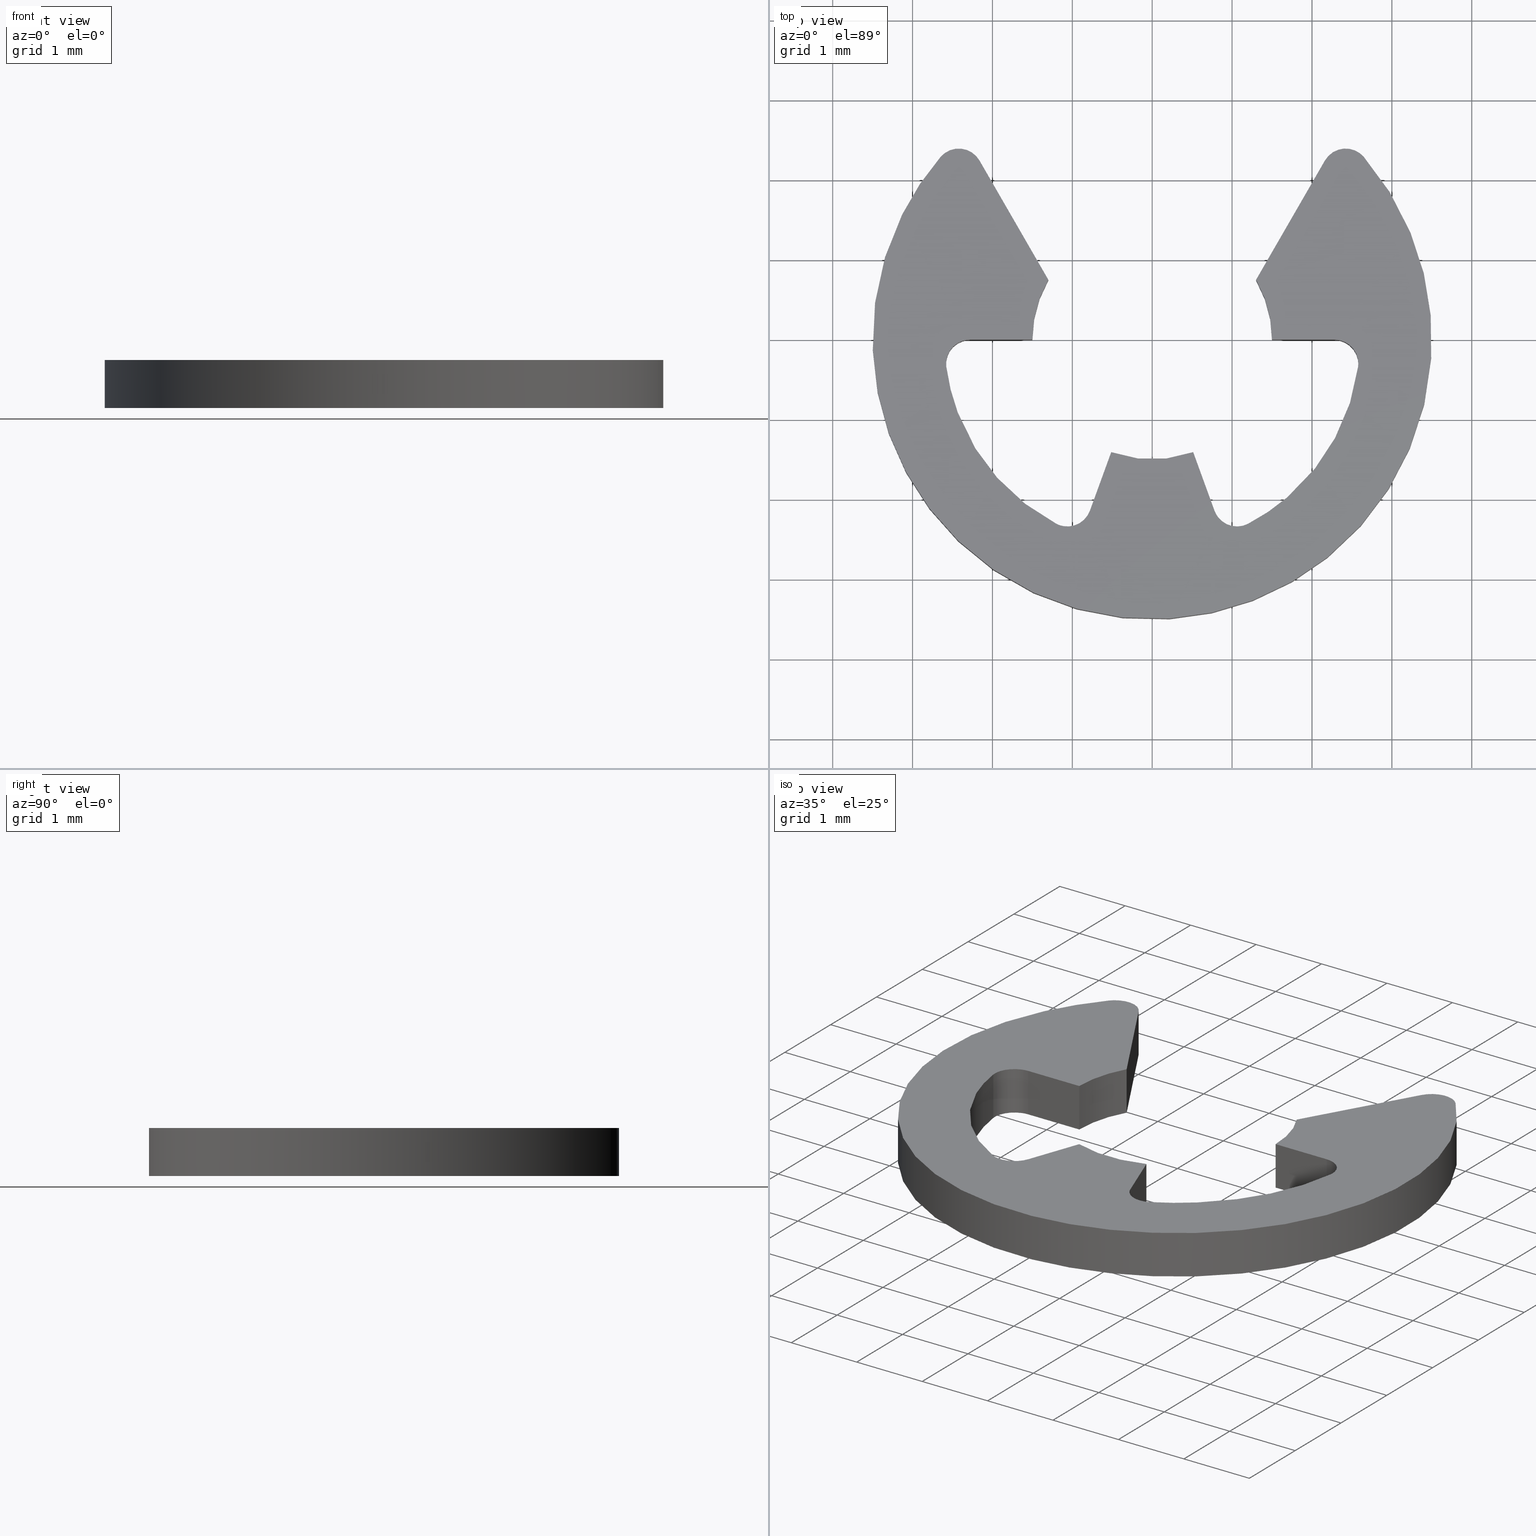
[diagram: canonical four-view strip — front | top / right | iso, engineering-drawing reading convention]
A machine part, canonical four-view strip (front | top / right | iso — engineering-drawing reading convention). The complete STEP part file that produces these views, byte-faithful:
ISO-10303-21;
HEADER;
/****************************************************************
 * Generated by software with PDE/Lib inside                    *
 * PDElib Version 4.4.1-0003, patched  Thursday August 19 11:58 *
 * International Technegroup Inc. (www.iti-oh.com)              *
 ****************************************************************/
FILE_DESCRIPTION((''),'2;1');
FILE_NAME('','2005-04-20T08:52:29',(''),(''),'','CADfix','');
FILE_SCHEMA(('AUTOMOTIVE_DESIGN'));
ENDSEC;
DATA;
#5=APPLICATION_CONTEXT('automotive design');
#6=APPLICATION_PROTOCOL_DEFINITION('Draft International Standard','automotive_design',1998,#5);
#7=PRODUCT_CONTEXT('None',#5,'mechanical');
#8=PRODUCT('retainer','','None',(#7));
#9=PRODUCT_RELATED_PRODUCT_CATEGORY('part','description',(#8));
#10=PRODUCT_DEFINITION_FORMATION('None','None',#8);
#11=PRODUCT_DEFINITION_CONTEXT('part definition',#5,'design');
#12=PRODUCT_DEFINITION('None','None',#10,#11);
#18=(NAMED_UNIT(*)PLANE_ANGLE_UNIT()SI_UNIT($,.RADIAN.));
#19=DIMENSIONAL_EXPONENTS(0.0,0.0,0.0,0.0,0.0,0.0,0.0);
#20=PLANE_ANGLE_MEASURE_WITH_UNIT(PLANE_ANGLE_MEASURE(0.017453292500000),#18);
#24=(CONVERSION_BASED_UNIT('DEGREE',#20)NAMED_UNIT(#19)PLANE_ANGLE_UNIT());
#28=(NAMED_UNIT(*)SI_UNIT($,.STERADIAN.)SOLID_ANGLE_UNIT());
#32=(LENGTH_UNIT()NAMED_UNIT(*)SI_UNIT(.MILLI.,.METRE.));
#34=UNCERTAINTY_MEASURE_WITH_UNIT(LENGTH_MEASURE(0.001000000000000),#32,'DISTANCE_ACCURACY_VALUE','');
#36=(GEOMETRIC_REPRESENTATION_CONTEXT(3)GLOBAL_UNCERTAINTY_ASSIGNED_CONTEXT((#34))GLOBAL_UNIT_ASSIGNED_CONTEXT((#24,#28,#32))REPRESENTATION_CONTEXT('None','None'));
#37=AXIS2_PLACEMENT_3D('',#38,#39,#40);
#38=CARTESIAN_POINT('',(0.0,0.0,0.0));
#39=DIRECTION('',(0.0,0.0,1.0));
#40=DIRECTION('',(1.0,0.0,0.0));
#41=ADVANCED_BREP_SHAPE_REPRESENTATION('',(#37,#941),#36);
#42=PRODUCT_DEFINITION_SHAPE('','',#12);
#43=SHAPE_DEFINITION_REPRESENTATION(#42,#41);
#44=CARTESIAN_POINT('',(-3.845083127346428,-3.794273715898620,0.0));
#45=CARTESIAN_POINT('',(3.845083202592860,-3.794273715898620,0.0));
#46=CARTESIAN_POINT('',(-3.845083127346428,2.685639786198697,0.0));
#47=CARTESIAN_POINT('',(3.845083202592860,2.685639786198697,0.0));
#48=B_SPLINE_SURFACE_WITH_KNOTS('',1,1,((#44,#46),(#45,#47)),.UNSPECIFIED.,.F.,.F.,.U.,(2,2),(2,2),(0.0,7.690166329939289),(0.0,6.479913502097317),.UNSPECIFIED.);
#49=CARTESIAN_POINT('',(-1.500000000000000,0.0,0.0));
#50=VERTEX_POINT('',#49);
#51=CARTESIAN_POINT('',(-1.300001000000000,0.748328999999899,0.0));
#52=VERTEX_POINT('',#51);
#53=CARTESIAN_POINT('',(-1.500000000000000,0.0,0.0));
#54=CARTESIAN_POINT('',(-1.500000000000000,0.400890445406895,0.0));
#55=CARTESIAN_POINT('',(-1.300001000000000,0.748328999999899,0.0));
#63=(BOUNDED_CURVE()B_SPLINE_CURVE(2,(#53,#54,#55),.UNSPECIFIED.,.F.,.U.)CURVE()GEOMETRIC_REPRESENTATION_ITEM()QUASI_UNIFORM_CURVE()RATIONAL_B_SPLINE_CURVE((1.0,0.966092010804248,1.0))REPRESENTATION_ITEM(''));
#64=EDGE_CURVE('',#50,#52,#63,.T.);
#65=ORIENTED_EDGE('',*,*,#64,.F.);
#66=CARTESIAN_POINT('',(-2.280351994764015,-0.000003000000103,0.0));
#67=VERTEX_POINT('',#66);
#68=CARTESIAN_POINT('',(-2.280351994764015,-0.000003000000103,0.0));
#69=CARTESIAN_POINT('',(-1.500000000000000,0.0,0.0));
#70=QUASI_UNIFORM_CURVE('',1,(#68,#69),.UNSPECIFIED.,.F.,.U.);
#71=EDGE_CURVE('',#67,#50,#70,.T.);
#72=ORIENTED_EDGE('',*,*,#71,.F.);
#73=CARTESIAN_POINT('',(-2.577788062356600,-0.339129334578741,0.0));
#74=VERTEX_POINT('',#73);
#75=CARTESIAN_POINT('',(-2.577788062356600,-0.339129334578741,0.0));
#76=CARTESIAN_POINT('',(-2.595515124665340,-0.204371596682613,0.0));
#77=CARTESIAN_POINT('',(-2.505892765611844,-0.102187277315756,0.0));
#78=CARTESIAN_POINT('',(-2.416270406558349,-0.000002957948899,0.0));
#79=CARTESIAN_POINT('',(-2.280351994764015,-0.000003000000103,0.0));
#87=(BOUNDED_CURVE()B_SPLINE_CURVE(2,(#75,#76,#77,#78,#79),.UNSPECIFIED.,.F.,.U.)B_SPLINE_CURVE_WITH_KNOTS((3,2,3),(0.0,0.500000000000000,1.0),.UNSPECIFIED.)CURVE()GEOMETRIC_REPRESENTATION_ITEM()RATIONAL_B_SPLINE_CURVE((1.0,0.910874688502973,1.0,0.910874688502973,1.0))REPRESENTATION_ITEM(''));
#88=EDGE_CURVE('',#74,#67,#87,.T.);
#89=ORIENTED_EDGE('',*,*,#88,.F.);
#90=CARTESIAN_POINT('',(-1.200332558039268,-2.306345755683250,0.0));
#91=VERTEX_POINT('',#90);
#92=CARTESIAN_POINT('',(-1.200332558039268,-2.306345755683250,0.0));
#93=CARTESIAN_POINT('',(-2.401209605165513,-1.681348804126765,0.0));
#94=CARTESIAN_POINT('',(-2.577788062356600,-0.339129334578741,0.0));
#102=(BOUNDED_CURVE()B_SPLINE_CURVE(2,(#92,#93,#94),.UNSPECIFIED.,.F.,.U.)CURVE()GEOMETRIC_REPRESENTATION_ITEM()QUASI_UNIFORM_CURVE()RATIONAL_B_SPLINE_CURVE((1.0,0.886967780551010,1.0))REPRESENTATION_ITEM(''));
#103=EDGE_CURVE('',#91,#74,#102,.T.);
#104=ORIENTED_EDGE('',*,*,#103,.F.);
#105=CARTESIAN_POINT('',(-0.779926000000000,-2.142830000000105,0.0));
#106=VERTEX_POINT('',#105);
#107=CARTESIAN_POINT('',(-0.779926000000000,-2.142830000000105,0.0));
#108=CARTESIAN_POINT('',(-0.826411067296202,-2.270555561546921,0.0));
#109=CARTESIAN_POINT('',(-0.953087364756969,-2.319825893111315,0.0));
#110=CARTESIAN_POINT('',(-1.079763662217735,-2.369096224675708,0.0));
#111=CARTESIAN_POINT('',(-1.200332558039268,-2.306345755683250,0.0));
#119=(BOUNDED_CURVE()B_SPLINE_CURVE(2,(#107,#108,#109,#110,#111),.UNSPECIFIED.,.F.,.U.)B_SPLINE_CURVE_WITH_KNOTS((3,2,3),(0.0,0.500000000000000,1.0),.UNSPECIFIED.)CURVE()GEOMETRIC_REPRESENTATION_ITEM()RATIONAL_B_SPLINE_CURVE((1.0,0.910871397277956,1.0,0.910871397277956,1.0))REPRESENTATION_ITEM(''));
#120=EDGE_CURVE('',#106,#91,#119,.T.);
#121=ORIENTED_EDGE('',*,*,#120,.F.);
#122=CARTESIAN_POINT('',(-0.513031518846331,-1.409538456612740,0.0));
#123=VERTEX_POINT('',#122);
#124=CARTESIAN_POINT('',(-0.513031518846331,-1.409538456612740,0.0));
#125=CARTESIAN_POINT('',(-0.779926000000000,-2.142830000000105,0.0));
#126=QUASI_UNIFORM_CURVE('',1,(#124,#125),.UNSPECIFIED.,.F.,.U.);
#127=EDGE_CURVE('',#123,#106,#126,.T.);
#128=ORIENTED_EDGE('',*,*,#127,.F.);
#129=CARTESIAN_POINT('',(0.513029000000000,-1.409546000000000,0.0));
#130=VERTEX_POINT('',#129);
#131=CARTESIAN_POINT('',(0.513029000000000,-1.409546000000000,0.0));
#132=CARTESIAN_POINT('',(-0.000001567330711,-1.596269163825916,0.0));
#133=CARTESIAN_POINT('',(-0.513031518846331,-1.409538456612740,0.0));
#141=(BOUNDED_CURVE()B_SPLINE_CURVE(2,(#131,#132,#133),.UNSPECIFIED.,.F.,.U.)CURVE()GEOMETRIC_REPRESENTATION_ITEM()QUASI_UNIFORM_CURVE()RATIONAL_B_SPLINE_CURVE((1.0,0.939692868390395,1.0))REPRESENTATION_ITEM(''));
#142=EDGE_CURVE('',#130,#123,#141,.T.);
#143=ORIENTED_EDGE('',*,*,#142,.F.);
#144=CARTESIAN_POINT('',(0.779924138981017,-2.142830381845260,0.0));
#145=VERTEX_POINT('',#144);
#146=CARTESIAN_POINT('',(0.779924138981017,-2.142830381845260,0.0));
#147=CARTESIAN_POINT('',(0.513029000000000,-1.409546000000000,0.0));
#148=QUASI_UNIFORM_CURVE('',1,(#146,#147),.UNSPECIFIED.,.F.,.U.);
#149=EDGE_CURVE('',#145,#130,#148,.T.);
#150=ORIENTED_EDGE('',*,*,#149,.F.);
#151=CARTESIAN_POINT('',(1.200331538917840,-2.306340000233950,0.0));
#152=VERTEX_POINT('',#151);
#153=CARTESIAN_POINT('',(1.200331538917839,-2.306340000233949,0.0));
#154=CARTESIAN_POINT('',(1.079763488574856,-2.369089479234371,0.0));
#155=CARTESIAN_POINT('',(0.953087554820629,-2.319821237071419,0.0));
#156=CARTESIAN_POINT('',(0.826411621066402,-2.270552994908467,0.0));
#157=CARTESIAN_POINT('',(0.779924138981018,-2.142830381845259,0.0));
#165=(BOUNDED_CURVE()B_SPLINE_CURVE(2,(#153,#154,#155,#156,#157),.UNSPECIFIED.,.F.,.U.)B_SPLINE_CURVE_WITH_KNOTS((3,2,3),(0.0,0.500000000000000,1.0),.UNSPECIFIED.)CURVE()GEOMETRIC_REPRESENTATION_ITEM()RATIONAL_B_SPLINE_CURVE((1.0,0.910873616951622,1.0,0.910873616951622,1.0))REPRESENTATION_ITEM(''));
#166=EDGE_CURVE('',#152,#145,#165,.T.);
#167=ORIENTED_EDGE('',*,*,#166,.F.);
#168=CARTESIAN_POINT('',(2.577787015822346,-0.339133826961695,0.0));
#169=VERTEX_POINT('',#168);
#170=CARTESIAN_POINT('',(2.577787015822346,-0.339133826961695,0.0));
#171=CARTESIAN_POINT('',(2.401205875392415,-1.681346573331909,0.0));
#172=CARTESIAN_POINT('',(1.200331538917840,-2.306340000233948,0.0));
#180=(BOUNDED_CURVE()B_SPLINE_CURVE(2,(#170,#171,#172),.UNSPECIFIED.,.F.,.U.)CURVE()GEOMETRIC_REPRESENTATION_ITEM()QUASI_UNIFORM_CURVE()RATIONAL_B_SPLINE_CURVE((1.0,0.886968343947677,1.0))REPRESENTATION_ITEM(''));
#181=EDGE_CURVE('',#169,#152,#180,.T.);
#182=ORIENTED_EDGE('',*,*,#181,.F.);
#183=CARTESIAN_POINT('',(2.280350000000000,0.0,0.0));
#184=VERTEX_POINT('',#183);
#185=CARTESIAN_POINT('',(2.280350000000000,0.0,0.0));
#186=CARTESIAN_POINT('',(2.416270016453168,-0.000000596047930,0.0));
#187=CARTESIAN_POINT('',(2.505892953878499,-0.102187506673590,0.0));
#188=CARTESIAN_POINT('',(2.595515891303831,-0.204374417299251,0.0));
#189=CARTESIAN_POINT('',(2.577787015822346,-0.339133826961695,0.0));
#197=(BOUNDED_CURVE()B_SPLINE_CURVE(2,(#185,#186,#187,#188,#189),.UNSPECIFIED.,.F.,.U.)B_SPLINE_CURVE_WITH_KNOTS((3,2,3),(0.0,0.500000000000000,1.0),.UNSPECIFIED.)CURVE()GEOMETRIC_REPRESENTATION_ITEM()RATIONAL_B_SPLINE_CURVE((1.0,0.910873201316976,1.0,0.910873201316976,1.0))REPRESENTATION_ITEM(''));
#198=EDGE_CURVE('',#184,#169,#197,.T.);
#199=ORIENTED_EDGE('',*,*,#198,.F.);
#200=CARTESIAN_POINT('',(1.500000000000000,3.673819E-016,0.0));
#201=VERTEX_POINT('',#200);
#202=CARTESIAN_POINT('',(1.500000000000000,3.673819E-016,0.0));
#203=CARTESIAN_POINT('',(2.280350000000000,0.0,0.0));
#204=QUASI_UNIFORM_CURVE('',1,(#202,#203),.UNSPECIFIED.,.F.,.U.);
#205=EDGE_CURVE('',#201,#184,#204,.T.);
#206=ORIENTED_EDGE('',*,*,#205,.F.);
#207=CARTESIAN_POINT('',(1.299999000000000,0.748328999999899,0.0));
#208=VERTEX_POINT('',#207);
#209=CARTESIAN_POINT('',(1.299999000000000,0.748328999999899,0.0));
#210=CARTESIAN_POINT('',(1.499999088878164,0.400890455451811,0.0));
#211=CARTESIAN_POINT('',(1.500000000000000,3.673819E-016,0.0));
#219=(BOUNDED_CURVE()B_SPLINE_CURVE(2,(#209,#210,#211),.UNSPECIFIED.,.F.,.U.)CURVE()GEOMETRIC_REPRESENTATION_ITEM()QUASI_UNIFORM_CURVE()RATIONAL_B_SPLINE_CURVE((1.0,0.966091924929796,1.0))REPRESENTATION_ITEM(''));
#220=EDGE_CURVE('',#208,#201,#219,.T.);
#221=ORIENTED_EDGE('',*,*,#220,.F.);
#222=CARTESIAN_POINT('',(2.162086172043400,2.241506641774375,0.0));
#223=VERTEX_POINT('',#222);
#224=CARTESIAN_POINT('',(2.162086172043400,2.241506641774375,0.0));
#225=CARTESIAN_POINT('',(1.299999000000000,0.748328999999899,0.0));
#226=QUASI_UNIFORM_CURVE('',1,(#224,#225),.UNSPECIFIED.,.F.,.U.);
#227=EDGE_CURVE('',#223,#208,#226,.T.);
#228=ORIENTED_EDGE('',*,*,#227,.F.);
#229=CARTESIAN_POINT('',(2.648947918440440,2.287591511915985,0.0));
#230=VERTEX_POINT('',#229);
#231=CARTESIAN_POINT('',(2.162086172043400,2.241506641774375,0.0));
#232=CARTESIAN_POINT('',(2.239495828976419,2.375584001545189,0.0));
#233=CARTESIAN_POINT('',(2.393626465706862,2.390173544533791,0.0));
#234=CARTESIAN_POINT('',(2.547757102437305,2.404763087522395,0.0));
#235=CARTESIAN_POINT('',(2.648947918440440,2.287591511915985,0.0));
#243=(BOUNDED_CURVE()B_SPLINE_CURVE(2,(#231,#232,#233,#234,#235),.UNSPECIFIED.,.F.,.U.)B_SPLINE_CURVE_WITH_KNOTS((3,2,3),(0.0,0.500000000000000,1.0),.UNSPECIFIED.)CURVE()GEOMETRIC_REPRESENTATION_ITEM()RATIONAL_B_SPLINE_CURVE((1.0,0.888645087393422,1.0,0.888645087393422,1.0))REPRESENTATION_ITEM(''));
#244=EDGE_CURVE('',#223,#230,#243,.T.);
#245=ORIENTED_EDGE('',*,*,#244,.T.);
#246=CARTESIAN_POINT('',(-2.648951083941810,2.287587846375195,0.0));
#247=VERTEX_POINT('',#246);
#248=CARTESIAN_POINT('',(2.648947918440440,2.287591511915984,0.0));
#249=CARTESIAN_POINT('',(4.827730852482507,-0.235360023706016,0.0));
#250=CARTESIAN_POINT('',(2.413867098343857,-2.534412285231629,0.0));
#251=CARTESIAN_POINT('',(0.000003344205210,-4.833464546757240,0.0));
#252=CARTESIAN_POINT('',(-2.413863591294092,-2.534415625469665,0.0));
#253=CARTESIAN_POINT('',(-4.827730526793396,-0.235366704182089,0.0));
#254=CARTESIAN_POINT('',(-2.648951083941811,2.287587846375196,0.0));
#262=(BOUNDED_CURVE()B_SPLINE_CURVE(2,(#248,#249,#250,#251,#252,#253,#254),.UNSPECIFIED.,.F.,.U.)B_SPLINE_CURVE_WITH_KNOTS((3,2,2,3),(0.0,0.333333333333333,0.666666666666667,1.0),.UNSPECIFIED.)CURVE()GEOMETRIC_REPRESENTATION_ITEM()RATIONAL_B_SPLINE_CURVE((1.0,0.724118272957500,1.0,0.724118272957500,1.0,0.724118272957500,1.0))REPRESENTATION_ITEM(''));
#263=EDGE_CURVE('',#230,#247,#262,.T.);
#264=ORIENTED_EDGE('',*,*,#263,.T.);
#265=CARTESIAN_POINT('',(-2.162090000000000,2.241507999999895,0.0));
#266=VERTEX_POINT('',#265);
#267=CARTESIAN_POINT('',(-2.648951083941811,2.287587846375196,0.0));
#268=CARTESIAN_POINT('',(-2.547761402684595,2.404762151298508,0.0));
#269=CARTESIAN_POINT('',(-2.393630421255934,2.390174146258859,0.0));
#270=CARTESIAN_POINT('',(-2.239499439827274,2.375586141219209,0.0));
#271=CARTESIAN_POINT('',(-2.162090000000000,2.241507999999895,0.0));
#279=(BOUNDED_CURVE()B_SPLINE_CURVE(2,(#267,#268,#269,#270,#271),.UNSPECIFIED.,.F.,.U.)B_SPLINE_CURVE_WITH_KNOTS((3,2,3),(0.0,0.500000000000000,1.0),.UNSPECIFIED.)CURVE()GEOMETRIC_REPRESENTATION_ITEM()RATIONAL_B_SPLINE_CURVE((1.0,0.888643489135460,1.0,0.888643489135460,1.0))REPRESENTATION_ITEM(''));
#280=EDGE_CURVE('',#247,#266,#279,.T.);
#281=ORIENTED_EDGE('',*,*,#280,.T.);
#282=CARTESIAN_POINT('',(-1.300001000000000,0.748328999999899,0.0));
#283=CARTESIAN_POINT('',(-2.162090000000000,2.241507999999895,0.0));
#284=QUASI_UNIFORM_CURVE('',1,(#282,#283),.UNSPECIFIED.,.F.,.U.);
#285=EDGE_CURVE('',#52,#266,#284,.T.);
#286=ORIENTED_EDGE('',*,*,#285,.F.);
#287=EDGE_LOOP('',(#65,#72,#89,#104,#121,#128,#143,#150,#167,#182,#199,#206,#221,#228,#245,#264,#281,#286));
#288=FACE_OUTER_BOUND('',#287,.T.);
#289=ADVANCED_FACE('',(#288),#48,.F.);
#290=CARTESIAN_POINT('',(-3.845083127346428,-3.794273715898620,0.599990999999903));
#291=CARTESIAN_POINT('',(3.845083202592860,-3.794273715898620,0.599990999999903));
#292=CARTESIAN_POINT('',(-3.845083127346428,2.685639786198697,0.599990999999903));
#293=CARTESIAN_POINT('',(3.845083202592860,2.685639786198697,0.599990999999903));
#294=B_SPLINE_SURFACE_WITH_KNOTS('',1,1,((#290,#292),(#291,#293)),.UNSPECIFIED.,.F.,.F.,.U.,(2,2),(2,2),(0.0,7.690166329939289),(0.0,6.479913502097317),.UNSPECIFIED.);
#295=CARTESIAN_POINT('',(-1.500000000000000,0.0,0.599990999999855));
#296=VERTEX_POINT('',#295);
#297=CARTESIAN_POINT('',(-1.300001000000000,0.748328999999899,0.599990999999855));
#298=VERTEX_POINT('',#297);
#299=CARTESIAN_POINT('',(-1.500000000000000,0.0,0.599990999999855));
#300=CARTESIAN_POINT('',(-1.500000000000000,0.400890445406895,0.599990999999855));
#301=CARTESIAN_POINT('',(-1.300001000000000,0.748328999999899,0.599990999999855));
#309=(BOUNDED_CURVE()B_SPLINE_CURVE(2,(#299,#300,#301),.UNSPECIFIED.,.F.,.U.)CURVE()GEOMETRIC_REPRESENTATION_ITEM()QUASI_UNIFORM_CURVE()RATIONAL_B_SPLINE_CURVE((1.0,0.966092010804248,1.0))REPRESENTATION_ITEM(''));
#310=EDGE_CURVE('',#296,#298,#309,.T.);
#311=ORIENTED_EDGE('',*,*,#310,.T.);
#312=CARTESIAN_POINT('',(-2.162090000000000,2.241507999999895,0.599990999999855));
#313=VERTEX_POINT('',#312);
#314=CARTESIAN_POINT('',(-1.300001000000000,0.748328999999899,0.599990999999855));
#315=CARTESIAN_POINT('',(-2.162090000000000,2.241507999999895,0.599990999999855));
#316=QUASI_UNIFORM_CURVE('',1,(#314,#315),.UNSPECIFIED.,.F.,.U.);
#317=EDGE_CURVE('',#298,#313,#316,.T.);
#318=ORIENTED_EDGE('',*,*,#317,.T.);
#319=CARTESIAN_POINT('',(-2.648951083941810,2.287587846375195,0.599990999999855));
#320=VERTEX_POINT('',#319);
#321=CARTESIAN_POINT('',(-2.648951083941811,2.287587846375196,0.599990999999855));
#322=CARTESIAN_POINT('',(-2.547761402684595,2.404762151298508,0.599990999999855));
#323=CARTESIAN_POINT('',(-2.393630421255934,2.390174146258859,0.599990999999855));
#324=CARTESIAN_POINT('',(-2.239499439827274,2.375586141219209,0.599990999999855));
#325=CARTESIAN_POINT('',(-2.162090000000000,2.241507999999895,0.599990999999855));
#333=(BOUNDED_CURVE()B_SPLINE_CURVE(2,(#321,#322,#323,#324,#325),.UNSPECIFIED.,.F.,.U.)B_SPLINE_CURVE_WITH_KNOTS((3,2,3),(0.0,0.500000000000000,1.0),.UNSPECIFIED.)CURVE()GEOMETRIC_REPRESENTATION_ITEM()RATIONAL_B_SPLINE_CURVE((1.0,0.888643489135460,1.0,0.888643489135460,1.0))REPRESENTATION_ITEM(''));
#334=EDGE_CURVE('',#320,#313,#333,.T.);
#335=ORIENTED_EDGE('',*,*,#334,.F.);
#336=CARTESIAN_POINT('',(2.648947918440440,2.287591511915985,0.599990999999855));
#337=VERTEX_POINT('',#336);
#338=CARTESIAN_POINT('',(2.648947918440440,2.287591511915984,0.599990999999855));
#339=CARTESIAN_POINT('',(4.827730852482507,-0.235360023706016,0.599990999999855));
#340=CARTESIAN_POINT('',(2.413867098343857,-2.534412285231629,0.599990999999855));
#341=CARTESIAN_POINT('',(0.000003344205210,-4.833464546757240,0.599990999999855));
#342=CARTESIAN_POINT('',(-2.413863591294092,-2.534415625469665,0.599990999999855));
#343=CARTESIAN_POINT('',(-4.827730526793396,-0.235366704182089,0.599990999999855));
#344=CARTESIAN_POINT('',(-2.648951083941811,2.287587846375196,0.599990999999855));
#352=(BOUNDED_CURVE()B_SPLINE_CURVE(2,(#338,#339,#340,#341,#342,#343,#344),.UNSPECIFIED.,.F.,.U.)B_SPLINE_CURVE_WITH_KNOTS((3,2,2,3),(0.0,0.333333333333333,0.666666666666667,1.0),.UNSPECIFIED.)CURVE()GEOMETRIC_REPRESENTATION_ITEM()RATIONAL_B_SPLINE_CURVE((1.0,0.724118272957500,1.0,0.724118272957500,1.0,0.724118272957500,1.0))REPRESENTATION_ITEM(''));
#353=EDGE_CURVE('',#337,#320,#352,.T.);
#354=ORIENTED_EDGE('',*,*,#353,.F.);
#355=CARTESIAN_POINT('',(2.162086172043400,2.241506641774375,0.599990999999855));
#356=VERTEX_POINT('',#355);
#357=CARTESIAN_POINT('',(2.162086172043400,2.241506641774375,0.599990999999855));
#358=CARTESIAN_POINT('',(2.239495828976419,2.375584001545189,0.599990999999855));
#359=CARTESIAN_POINT('',(2.393626465706862,2.390173544533791,0.599990999999855));
#360=CARTESIAN_POINT('',(2.547757102437305,2.404763087522395,0.599990999999855));
#361=CARTESIAN_POINT('',(2.648947918440440,2.287591511915985,0.599990999999855));
#369=(BOUNDED_CURVE()B_SPLINE_CURVE(2,(#357,#358,#359,#360,#361),.UNSPECIFIED.,.F.,.U.)B_SPLINE_CURVE_WITH_KNOTS((3,2,3),(0.0,0.500000000000000,1.0),.UNSPECIFIED.)CURVE()GEOMETRIC_REPRESENTATION_ITEM()RATIONAL_B_SPLINE_CURVE((1.0,0.888645087393422,1.0,0.888645087393422,1.0))REPRESENTATION_ITEM(''));
#370=EDGE_CURVE('',#356,#337,#369,.T.);
#371=ORIENTED_EDGE('',*,*,#370,.F.);
#372=CARTESIAN_POINT('',(1.299999000000000,0.748328999999899,0.599990999999855));
#373=VERTEX_POINT('',#372);
#374=CARTESIAN_POINT('',(2.162086172043400,2.241506641774375,0.599990999999855));
#375=CARTESIAN_POINT('',(1.299999000000000,0.748328999999899,0.599990999999855));
#376=QUASI_UNIFORM_CURVE('',1,(#374,#375),.UNSPECIFIED.,.F.,.U.);
#377=EDGE_CURVE('',#356,#373,#376,.T.);
#378=ORIENTED_EDGE('',*,*,#377,.T.);
#379=CARTESIAN_POINT('',(1.500000000000000,3.673819E-016,0.599990999999855));
#380=VERTEX_POINT('',#379);
#381=CARTESIAN_POINT('',(1.299999000000000,0.748328999999899,0.599990999999855));
#382=CARTESIAN_POINT('',(1.499999088878164,0.400890455451811,0.599990999999855));
#383=CARTESIAN_POINT('',(1.500000000000000,3.673819E-016,0.599990999999855));
#391=(BOUNDED_CURVE()B_SPLINE_CURVE(2,(#381,#382,#383),.UNSPECIFIED.,.F.,.U.)CURVE()GEOMETRIC_REPRESENTATION_ITEM()QUASI_UNIFORM_CURVE()RATIONAL_B_SPLINE_CURVE((1.0,0.966091924929796,1.0))REPRESENTATION_ITEM(''));
#392=EDGE_CURVE('',#373,#380,#391,.T.);
#393=ORIENTED_EDGE('',*,*,#392,.T.);
#394=CARTESIAN_POINT('',(2.280350000000000,0.0,0.599990999999855));
#395=VERTEX_POINT('',#394);
#396=CARTESIAN_POINT('',(1.500000000000000,3.673819E-016,0.599990999999855));
#397=CARTESIAN_POINT('',(2.280350000000000,0.0,0.599990999999855));
#398=QUASI_UNIFORM_CURVE('',1,(#396,#397),.UNSPECIFIED.,.F.,.U.);
#399=EDGE_CURVE('',#380,#395,#398,.T.);
#400=ORIENTED_EDGE('',*,*,#399,.T.);
#401=CARTESIAN_POINT('',(2.577787015822346,-0.339133826961695,0.599990999999855));
#402=VERTEX_POINT('',#401);
#403=CARTESIAN_POINT('',(2.280350000000000,0.0,0.599990999999855));
#404=CARTESIAN_POINT('',(2.416270016453168,-0.000000596047930,0.599990999999855));
#405=CARTESIAN_POINT('',(2.505892953878499,-0.102187506673590,0.599990999999855));
#406=CARTESIAN_POINT('',(2.595515891303831,-0.204374417299251,0.599990999999855));
#407=CARTESIAN_POINT('',(2.577787015822346,-0.339133826961695,0.599990999999855));
#415=(BOUNDED_CURVE()B_SPLINE_CURVE(2,(#403,#404,#405,#406,#407),.UNSPECIFIED.,.F.,.U.)B_SPLINE_CURVE_WITH_KNOTS((3,2,3),(0.0,0.500000000000000,1.0),.UNSPECIFIED.)CURVE()GEOMETRIC_REPRESENTATION_ITEM()RATIONAL_B_SPLINE_CURVE((1.0,0.910873201316976,1.0,0.910873201316976,1.0))REPRESENTATION_ITEM(''));
#416=EDGE_CURVE('',#395,#402,#415,.T.);
#417=ORIENTED_EDGE('',*,*,#416,.T.);
#418=CARTESIAN_POINT('',(1.200331538917840,-2.306340000233950,0.599990999999855));
#419=VERTEX_POINT('',#418);
#420=CARTESIAN_POINT('',(2.577787015822346,-0.339133826961695,0.599990999999855));
#421=CARTESIAN_POINT('',(2.401205875392415,-1.681346573331909,0.599990999999855));
#422=CARTESIAN_POINT('',(1.200331538917840,-2.306340000233948,0.599990999999855));
#430=(BOUNDED_CURVE()B_SPLINE_CURVE(2,(#420,#421,#422),.UNSPECIFIED.,.F.,.U.)CURVE()GEOMETRIC_REPRESENTATION_ITEM()QUASI_UNIFORM_CURVE()RATIONAL_B_SPLINE_CURVE((1.0,0.886968343947677,1.0))REPRESENTATION_ITEM(''));
#431=EDGE_CURVE('',#402,#419,#430,.T.);
#432=ORIENTED_EDGE('',*,*,#431,.T.);
#433=CARTESIAN_POINT('',(0.779924138981017,-2.142830381845260,0.599990999999855));
#434=VERTEX_POINT('',#433);
#435=CARTESIAN_POINT('',(1.200331538917839,-2.306340000233949,0.599990999999855));
#436=CARTESIAN_POINT('',(1.079763488574856,-2.369089479234371,0.599990999999855));
#437=CARTESIAN_POINT('',(0.953087554820629,-2.319821237071419,0.599990999999855));
#438=CARTESIAN_POINT('',(0.826411621066402,-2.270552994908467,0.599990999999855));
#439=CARTESIAN_POINT('',(0.779924138981018,-2.142830381845259,0.599990999999855));
#447=(BOUNDED_CURVE()B_SPLINE_CURVE(2,(#435,#436,#437,#438,#439),.UNSPECIFIED.,.F.,.U.)B_SPLINE_CURVE_WITH_KNOTS((3,2,3),(0.0,0.500000000000000,1.0),.UNSPECIFIED.)CURVE()GEOMETRIC_REPRESENTATION_ITEM()RATIONAL_B_SPLINE_CURVE((1.0,0.910873616951622,1.0,0.910873616951622,1.0))REPRESENTATION_ITEM(''));
#448=EDGE_CURVE('',#419,#434,#447,.T.);
#449=ORIENTED_EDGE('',*,*,#448,.T.);
#450=CARTESIAN_POINT('',(0.513029000000000,-1.409546000000000,0.599990999999855));
#451=VERTEX_POINT('',#450);
#452=CARTESIAN_POINT('',(0.779924138981017,-2.142830381845260,0.599990999999855));
#453=CARTESIAN_POINT('',(0.513029000000000,-1.409546000000000,0.599990999999855));
#454=QUASI_UNIFORM_CURVE('',1,(#452,#453),.UNSPECIFIED.,.F.,.U.);
#455=EDGE_CURVE('',#434,#451,#454,.T.);
#456=ORIENTED_EDGE('',*,*,#455,.T.);
#457=CARTESIAN_POINT('',(-0.513031518846331,-1.409538456612740,0.599990999999855));
#458=VERTEX_POINT('',#457);
#459=CARTESIAN_POINT('',(0.513029000000000,-1.409546000000000,0.599990999999855));
#460=CARTESIAN_POINT('',(-0.000001567330711,-1.596269163825916,0.599990999999855));
#461=CARTESIAN_POINT('',(-0.513031518846331,-1.409538456612740,0.599990999999855));
#469=(BOUNDED_CURVE()B_SPLINE_CURVE(2,(#459,#460,#461),.UNSPECIFIED.,.F.,.U.)CURVE()GEOMETRIC_REPRESENTATION_ITEM()QUASI_UNIFORM_CURVE()RATIONAL_B_SPLINE_CURVE((1.0,0.939692868390395,1.0))REPRESENTATION_ITEM(''));
#470=EDGE_CURVE('',#451,#458,#469,.T.);
#471=ORIENTED_EDGE('',*,*,#470,.T.);
#472=CARTESIAN_POINT('',(-0.779926000000000,-2.142830000000105,0.599990999999855));
#473=VERTEX_POINT('',#472);
#474=CARTESIAN_POINT('',(-0.513031518846331,-1.409538456612740,0.599990999999855));
#475=CARTESIAN_POINT('',(-0.779926000000000,-2.142830000000105,0.599990999999855));
#476=QUASI_UNIFORM_CURVE('',1,(#474,#475),.UNSPECIFIED.,.F.,.U.);
#477=EDGE_CURVE('',#458,#473,#476,.T.);
#478=ORIENTED_EDGE('',*,*,#477,.T.);
#479=CARTESIAN_POINT('',(-1.200332558039268,-2.306345755683250,0.599990999999855));
#480=VERTEX_POINT('',#479);
#481=CARTESIAN_POINT('',(-0.779926000000000,-2.142830000000105,0.599990999999855));
#482=CARTESIAN_POINT('',(-0.826411067296202,-2.270555561546921,0.599990999999855));
#483=CARTESIAN_POINT('',(-0.953087364756969,-2.319825893111315,0.599990999999855));
#484=CARTESIAN_POINT('',(-1.079763662217735,-2.369096224675708,0.599990999999855));
#485=CARTESIAN_POINT('',(-1.200332558039268,-2.306345755683250,0.599990999999855));
#493=(BOUNDED_CURVE()B_SPLINE_CURVE(2,(#481,#482,#483,#484,#485),.UNSPECIFIED.,.F.,.U.)B_SPLINE_CURVE_WITH_KNOTS((3,2,3),(0.0,0.500000000000000,1.0),.UNSPECIFIED.)CURVE()GEOMETRIC_REPRESENTATION_ITEM()RATIONAL_B_SPLINE_CURVE((1.0,0.910871397277956,1.0,0.910871397277956,1.0))REPRESENTATION_ITEM(''));
#494=EDGE_CURVE('',#473,#480,#493,.T.);
#495=ORIENTED_EDGE('',*,*,#494,.T.);
#496=CARTESIAN_POINT('',(-2.577788062356600,-0.339129334578741,0.599990999999855));
#497=VERTEX_POINT('',#496);
#498=CARTESIAN_POINT('',(-1.200332558039268,-2.306345755683250,0.599990999999855));
#499=CARTESIAN_POINT('',(-2.401209605165513,-1.681348804126765,0.599990999999855));
#500=CARTESIAN_POINT('',(-2.577788062356600,-0.339129334578741,0.599990999999855));
#508=(BOUNDED_CURVE()B_SPLINE_CURVE(2,(#498,#499,#500),.UNSPECIFIED.,.F.,.U.)CURVE()GEOMETRIC_REPRESENTATION_ITEM()QUASI_UNIFORM_CURVE()RATIONAL_B_SPLINE_CURVE((1.0,0.886967780551010,1.0))REPRESENTATION_ITEM(''));
#509=EDGE_CURVE('',#480,#497,#508,.T.);
#510=ORIENTED_EDGE('',*,*,#509,.T.);
#511=CARTESIAN_POINT('',(-2.280351994764015,-0.000003000000103,0.599990999999855));
#512=VERTEX_POINT('',#511);
#513=CARTESIAN_POINT('',(-2.577788062356600,-0.339129334578741,0.599990999999855));
#514=CARTESIAN_POINT('',(-2.595515124665340,-0.204371596682613,0.599990999999855));
#515=CARTESIAN_POINT('',(-2.505892765611844,-0.102187277315756,0.599990999999855));
#516=CARTESIAN_POINT('',(-2.416270406558349,-0.000002957948899,0.599990999999855));
#517=CARTESIAN_POINT('',(-2.280351994764015,-0.000003000000103,0.599990999999855));
#525=(BOUNDED_CURVE()B_SPLINE_CURVE(2,(#513,#514,#515,#516,#517),.UNSPECIFIED.,.F.,.U.)B_SPLINE_CURVE_WITH_KNOTS((3,2,3),(0.0,0.500000000000000,1.0),.UNSPECIFIED.)CURVE()GEOMETRIC_REPRESENTATION_ITEM()RATIONAL_B_SPLINE_CURVE((1.0,0.910874688502973,1.0,0.910874688502973,1.0))REPRESENTATION_ITEM(''));
#526=EDGE_CURVE('',#497,#512,#525,.T.);
#527=ORIENTED_EDGE('',*,*,#526,.T.);
#528=CARTESIAN_POINT('',(-2.280351994764015,-0.000003000000103,0.599990999999855));
#529=CARTESIAN_POINT('',(-1.500000000000000,0.0,0.599990999999855));
#530=QUASI_UNIFORM_CURVE('',1,(#528,#529),.UNSPECIFIED.,.F.,.U.);
#531=EDGE_CURVE('',#512,#296,#530,.T.);
#532=ORIENTED_EDGE('',*,*,#531,.T.);
#533=EDGE_LOOP('',(#311,#318,#335,#354,#371,#378,#393,#400,#417,#432,#449,#456,#471,#478,#495,#510,#527,#532));
#534=FACE_OUTER_BOUND('',#533,.T.);
#535=ADVANCED_FACE('',(#534),#294,.T.);
#536=CARTESIAN_POINT('',(-2.319330450858439,0.0,-0.029969549287094));
#537=CARTESIAN_POINT('',(-2.319330450858439,0.0,0.629960565379962));
#538=CARTESIAN_POINT('',(-1.461021404367766,0.0,-0.029969549287094));
#539=CARTESIAN_POINT('',(-1.461021404367766,0.0,0.629960565379962));
#540=B_SPLINE_SURFACE_WITH_KNOTS('',1,1,((#536,#538),(#537,#539)),.UNSPECIFIED.,.F.,.F.,.U.,(2,2),(2,2),(0.041708334948495,0.958291687403247),(0.041708467935026,0.958291681076586),.UNSPECIFIED.);
#541=ORIENTED_EDGE('',*,*,#71,.T.);
#542=CARTESIAN_POINT('',(-1.500000000000000,0.0,0.599990999999855));
#543=CARTESIAN_POINT('',(-1.500000000000000,0.0,0.0));
#544=QUASI_UNIFORM_CURVE('',1,(#542,#543),.UNSPECIFIED.,.F.,.U.);
#545=EDGE_CURVE('',#296,#50,#544,.T.);
#546=ORIENTED_EDGE('',*,*,#545,.F.);
#547=ORIENTED_EDGE('',*,*,#531,.F.);
#548=CARTESIAN_POINT('',(-2.280351994764015,-0.000003000000103,0.599990999999855));
#549=CARTESIAN_POINT('',(-2.280351994764015,-0.000003000000103,0.0));
#550=QUASI_UNIFORM_CURVE('',1,(#548,#549),.UNSPECIFIED.,.F.,.U.);
#551=EDGE_CURVE('',#512,#67,#550,.T.);
#552=ORIENTED_EDGE('',*,*,#551,.T.);
#553=EDGE_LOOP('',(#541,#546,#547,#552));
#554=FACE_OUTER_BOUND('',#553,.T.);
#555=ADVANCED_FACE('',(#554),#540,.F.);
#556=CARTESIAN_POINT('',(-2.269850576845972,-0.000186856152345,0.614990774999852));
#557=CARTESIAN_POINT('',(-2.269850576845972,-0.000186856152345,-0.015374769374996));
#558=CARTESIAN_POINT('',(-2.652031711235744,0.013199500440085,0.614990774999852));
#559=CARTESIAN_POINT('',(-2.652031711235744,0.013199500440085,-0.015374769374996));
#560=CARTESIAN_POINT('',(-2.574048017375661,-0.361180196549761,0.614990774999852));
#561=CARTESIAN_POINT('',(-2.574048017375661,-0.361180196549761,-0.015374769374996));
#569=(BOUNDED_SURFACE()B_SPLINE_SURFACE(1,2,((#556,#558,#560),(#557,#559,#561)),.UNSPECIFIED.,.F.,.F.,.U.)B_SPLINE_SURFACE_WITH_KNOTS((2,2),(3,3),(0.0,1.0),(0.0,0.997483606166579),.UNSPECIFIED.)GEOMETRIC_REPRESENTATION_ITEM()RATIONAL_B_SPLINE_SURFACE(((1.0,0.616628622419095,0.998070573259090),(1.0,0.616628622419095,0.998070573259090)))REPRESENTATION_ITEM('')SURFACE());
#570=ORIENTED_EDGE('',*,*,#88,.T.);
#571=ORIENTED_EDGE('',*,*,#551,.F.);
#572=ORIENTED_EDGE('',*,*,#526,.F.);
#573=CARTESIAN_POINT('',(-2.577788062356600,-0.339129334578741,0.599990999999855));
#574=CARTESIAN_POINT('',(-2.577788062356600,-0.339129334578741,0.0));
#575=QUASI_UNIFORM_CURVE('',1,(#573,#574),.UNSPECIFIED.,.F.,.U.);
#576=EDGE_CURVE('',#497,#74,#575,.T.);
#577=ORIENTED_EDGE('',*,*,#576,.T.);
#578=EDGE_LOOP('',(#570,#571,#572,#577));
#579=FACE_OUTER_BOUND('',#578,.T.);
#580=ADVANCED_FACE('',(#579),#569,.F.);
#581=CARTESIAN_POINT('',(-2.590084940126390,-0.226847973168093,0.614990774999851));
#582=CARTESIAN_POINT('',(-2.590084940126390,-0.226847973168093,-0.015374769374996));
#583=CARTESIAN_POINT('',(-2.458744526201825,-1.726455059733988,0.614990774999851));
#584=CARTESIAN_POINT('',(-2.458744526201825,-1.726455059733988,-0.015374769374996));
#585=CARTESIAN_POINT('',(-1.092826854874273,-2.359179828937506,0.614990774999851));
#586=CARTESIAN_POINT('',(-1.092826854874273,-2.359179828937506,-0.015374769374996));
#594=(BOUNDED_SURFACE()B_SPLINE_SURFACE(1,2,((#581,#583,#585),(#582,#584,#586)),.UNSPECIFIED.,.F.,.F.,.U.)B_SPLINE_SURFACE_WITH_KNOTS((2,2),(3,3),(0.0,1.0),(0.0,2.793465490999012),.UNSPECIFIED.)GEOMETRIC_REPRESENTATION_ITEM()RATIONAL_B_SPLINE_SURFACE(((1.0,0.861649035476334,0.991317781827260),(1.0,0.861649035476334,0.991317781827260)))REPRESENTATION_ITEM('')SURFACE());
#595=ORIENTED_EDGE('',*,*,#103,.T.);
#596=ORIENTED_EDGE('',*,*,#576,.F.);
#597=ORIENTED_EDGE('',*,*,#509,.F.);
#598=CARTESIAN_POINT('',(-1.200332558039268,-2.306345755683250,0.599990999999855));
#599=CARTESIAN_POINT('',(-1.200332558039268,-2.306345755683250,0.0));
#600=QUASI_UNIFORM_CURVE('',1,(#598,#599),.UNSPECIFIED.,.F.,.U.);
#601=EDGE_CURVE('',#480,#91,#600,.T.);
#602=ORIENTED_EDGE('',*,*,#601,.T.);
#603=EDGE_LOOP('',(#595,#596,#597,#602));
#604=FACE_OUTER_BOUND('',#603,.T.);
#605=ADVANCED_FACE('',(#604),#594,.F.);
#606=CARTESIAN_POINT('',(-1.209554657312751,-2.301339204197242,0.614990774999852));
#607=CARTESIAN_POINT('',(-1.209554657312751,-2.301339204197242,-0.015374769374996));
#608=CARTESIAN_POINT('',(-0.876713335713484,-2.489644341280846,0.614990774999851));
#609=CARTESIAN_POINT('',(-0.876713335713484,-2.489644341280846,-0.015374769374996));
#610=CARTESIAN_POINT('',(-0.773061876143435,-2.121543071322400,0.614990774999852));
#611=CARTESIAN_POINT('',(-0.773061876143435,-2.121543071322400,-0.015374769374996));
#619=(BOUNDED_SURFACE()B_SPLINE_SURFACE(1,2,((#606,#608,#610),(#607,#609,#611)),.UNSPECIFIED.,.F.,.F.,.U.)B_SPLINE_SURFACE_WITH_KNOTS((2,2),(3,3),(0.0,1.0),(0.0,0.997484775382001),.UNSPECIFIED.)GEOMETRIC_REPRESENTATION_ITEM()RATIONAL_B_SPLINE_SURFACE(((1.0,0.616628173044564,0.998071467485989),(1.0,0.616628173044564,0.998071467485989)))REPRESENTATION_ITEM('')SURFACE());
#620=ORIENTED_EDGE('',*,*,#120,.T.);
#621=ORIENTED_EDGE('',*,*,#601,.F.);
#622=ORIENTED_EDGE('',*,*,#494,.F.);
#623=CARTESIAN_POINT('',(-0.779926000000000,-2.142830000000105,0.599990999999855));
#624=CARTESIAN_POINT('',(-0.779926000000000,-2.142830000000105,0.0));
#625=QUASI_UNIFORM_CURVE('',1,(#623,#624),.UNSPECIFIED.,.F.,.U.);
#626=EDGE_CURVE('',#473,#106,#625,.T.);
#627=ORIENTED_EDGE('',*,*,#626,.T.);
#628=EDGE_LOOP('',(#620,#621,#622,#627));
#629=FACE_OUTER_BOUND('',#628,.T.);
#630=ADVANCED_FACE('',(#629),#619,.F.);
#631=CARTESIAN_POINT('',(-0.793257374394974,-2.179457800676265,-0.029969549287094));
#632=CARTESIAN_POINT('',(-0.499699490181284,-1.372910827248603,-0.029969549287094));
#633=CARTESIAN_POINT('',(-0.793257374394974,-2.179457800676265,0.629960565379962));
#634=CARTESIAN_POINT('',(-0.499699490181284,-1.372910827248603,0.629960565379962));
#635=B_SPLINE_SURFACE_WITH_KNOTS('',1,1,((#631,#633),(#632,#634)),.UNSPECIFIED.,.F.,.F.,.U.,(2,2),(2,2),(0.041708447444066,0.958291619611159),(0.041708334948495,0.958291687403247),.UNSPECIFIED.);
#636=ORIENTED_EDGE('',*,*,#127,.T.);
#637=ORIENTED_EDGE('',*,*,#626,.F.);
#638=ORIENTED_EDGE('',*,*,#477,.F.);
#639=CARTESIAN_POINT('',(-0.513031518846331,-1.409538456612740,0.599990999999855));
#640=CARTESIAN_POINT('',(-0.513031518846331,-1.409538456612740,0.0));
#641=QUASI_UNIFORM_CURVE('',1,(#639,#640),.UNSPECIFIED.,.F.,.U.);
#642=EDGE_CURVE('',#458,#123,#641,.T.);
#643=ORIENTED_EDGE('',*,*,#642,.T.);
#644=EDGE_LOOP('',(#636,#637,#638,#643));
#645=FACE_OUTER_BOUND('',#644,.T.);
#646=ADVANCED_FACE('',(#645),#635,.F.);
#647=CARTESIAN_POINT('',(-0.549755151794743,-1.395625047451907,0.614990774999852));
#648=CARTESIAN_POINT('',(-0.549755151794743,-1.395625047451907,-0.015374769374996));
#649=CARTESIAN_POINT('',(0.006492976463857,-1.614738536955890,0.614990774999852));
#650=CARTESIAN_POINT('',(0.006492976463857,-1.614738536955890,-0.015374769374996));
#651=CARTESIAN_POINT('',(0.560961004252359,-1.391158780193039,0.614990774999852));
#652=CARTESIAN_POINT('',(0.560961004252359,-1.391158780193039,-0.015374769374996));
#660=(BOUNDED_SURFACE()B_SPLINE_SURFACE(1,2,((#647,#649,#651),(#648,#650,#652)),.UNSPECIFIED.,.F.,.F.,.U.)B_SPLINE_SURFACE_WITH_KNOTS((2,2),(3,3),(0.0,1.0),(0.0,0.943539991817251),.UNSPECIFIED.)GEOMETRIC_REPRESENTATION_ITEM()RATIONAL_B_SPLINE_SURFACE(((1.0,0.924993150077004,0.991530225279171),(1.0,0.924993150077004,0.991530225279171)))REPRESENTATION_ITEM('')SURFACE());
#661=ORIENTED_EDGE('',*,*,#142,.T.);
#662=ORIENTED_EDGE('',*,*,#642,.F.);
#663=ORIENTED_EDGE('',*,*,#470,.F.);
#664=CARTESIAN_POINT('',(0.513029000000000,-1.409546000000000,0.599990999999855));
#665=CARTESIAN_POINT('',(0.513029000000000,-1.409546000000000,0.0));
#666=QUASI_UNIFORM_CURVE('',1,(#664,#665),.UNSPECIFIED.,.F.,.U.);
#667=EDGE_CURVE('',#451,#130,#666,.T.);
#668=ORIENTED_EDGE('',*,*,#667,.T.);
#669=EDGE_LOOP('',(#661,#662,#663,#668));
#670=FACE_OUTER_BOUND('',#669,.T.);
#671=ADVANCED_FACE('',(#670),#660,.F.);
#672=CARTESIAN_POINT('',(0.499697590830611,-1.372918453431627,-0.029969549287094));
#673=CARTESIAN_POINT('',(0.793255557695318,-2.179457954637927,-0.029969549287094));
#674=CARTESIAN_POINT('',(0.499697590830611,-1.372918453431627,0.629960565379962));
#675=CARTESIAN_POINT('',(0.793255557695318,-2.179457954637927,0.629960565379962));
#676=B_SPLINE_SURFACE_WITH_KNOTS('',1,1,((#672,#674),(#673,#675)),.UNSPECIFIED.,.F.,.F.,.U.,(2,2),(2,2),(0.041708342771232,0.958291687031090),(0.041708334948495,0.958291687403247),.UNSPECIFIED.);
#677=ORIENTED_EDGE('',*,*,#149,.T.);
#678=ORIENTED_EDGE('',*,*,#667,.F.);
#679=ORIENTED_EDGE('',*,*,#455,.F.);
#680=CARTESIAN_POINT('',(0.779924138981017,-2.142830381845260,0.599990999999855));
#681=CARTESIAN_POINT('',(0.779924138981017,-2.142830381845260,0.0));
#682=QUASI_UNIFORM_CURVE('',1,(#680,#681),.UNSPECIFIED.,.F.,.U.);
#683=EDGE_CURVE('',#434,#145,#682,.T.);
#684=ORIENTED_EDGE('',*,*,#683,.T.);
#685=EDGE_LOOP('',(#677,#678,#679,#684));
#686=FACE_OUTER_BOUND('',#685,.T.);
#687=ADVANCED_FACE('',(#686),#676,.F.);
#688=CARTESIAN_POINT('',(0.776506155825292,-2.132902363887686,0.614990774999851));
#689=CARTESIAN_POINT('',(0.776506155825292,-2.132902363887686,-0.015374769374996));
#690=CARTESIAN_POINT('',(0.894645232914005,-2.496612345321201,0.614990774999852));
#691=CARTESIAN_POINT('',(0.894645232914005,-2.496612345321201,-0.015374769374996));
#692=CARTESIAN_POINT('',(1.219772710049960,-2.295281980644262,0.614990774999851));
#693=CARTESIAN_POINT('',(1.219772710049960,-2.295281980644262,-0.015374769374996));
#701=(BOUNDED_SURFACE()B_SPLINE_SURFACE(1,2,((#688,#690,#692),(#689,#691,#693)),.UNSPECIFIED.,.F.,.F.,.U.)B_SPLINE_SURFACE_WITH_KNOTS((2,2),(3,3),(0.0,1.0),(0.0,0.997483980708662),.UNSPECIFIED.)GEOMETRIC_REPRESENTATION_ITEM()RATIONAL_B_SPLINE_SURFACE(((1.0,0.616628478468143,0.998070859712153),(1.0,0.616628478468143,0.998070859712153)))REPRESENTATION_ITEM('')SURFACE());
#702=ORIENTED_EDGE('',*,*,#166,.T.);
#703=ORIENTED_EDGE('',*,*,#683,.F.);
#704=ORIENTED_EDGE('',*,*,#448,.F.);
#705=CARTESIAN_POINT('',(1.200331538917840,-2.306340000233950,0.599990999999855));
#706=CARTESIAN_POINT('',(1.200331538917840,-2.306340000233950,0.0));
#707=QUASI_UNIFORM_CURVE('',1,(#705,#706),.UNSPECIFIED.,.F.,.U.);
#708=EDGE_CURVE('',#419,#152,#707,.T.);
#709=ORIENTED_EDGE('',*,*,#708,.T.);
#710=EDGE_LOOP('',(#702,#703,#704,#709));
#711=FACE_OUTER_BOUND('',#710,.T.);
#712=ADVANCED_FACE('',(#711),#701,.F.);
#713=CARTESIAN_POINT('',(1.099021576261235,-2.356300399972861,0.614990774999852));
#714=CARTESIAN_POINT('',(1.099021576261235,-2.356300399972861,-0.015374769374996));
#715=CARTESIAN_POINT('',(2.463271923597063,-1.719989101480858,0.614990774999852));
#716=CARTESIAN_POINT('',(2.463271923597063,-1.719989101480858,-0.015374769374996));
#717=CARTESIAN_POINT('',(2.590671992103638,-0.220042335312464,0.614990774999852));
#718=CARTESIAN_POINT('',(2.590671992103638,-0.220042335312464,-0.015374769374996));
#726=(BOUNDED_SURFACE()B_SPLINE_SURFACE(1,2,((#713,#715,#717),(#714,#716,#718)),.UNSPECIFIED.,.F.,.F.,.U.)B_SPLINE_SURFACE_WITH_KNOTS((2,2),(3,3),(0.0,1.0),(0.0,2.793465149716901),.UNSPECIFIED.)GEOMETRIC_REPRESENTATION_ITEM()RATIONAL_B_SPLINE_SURFACE(((1.0,0.861649052300245,0.991317750291011),(1.0,0.861649052300245,0.991317750291011)))REPRESENTATION_ITEM('')SURFACE());
#727=ORIENTED_EDGE('',*,*,#181,.T.);
#728=ORIENTED_EDGE('',*,*,#708,.F.);
#729=ORIENTED_EDGE('',*,*,#431,.F.);
#730=CARTESIAN_POINT('',(2.577787015822346,-0.339133826961695,0.599990999999855));
#731=CARTESIAN_POINT('',(2.577787015822346,-0.339133826961695,0.0));
#732=QUASI_UNIFORM_CURVE('',1,(#730,#731),.UNSPECIFIED.,.F.,.U.);
#733=EDGE_CURVE('',#402,#169,#732,.T.);
#734=ORIENTED_EDGE('',*,*,#733,.T.);
#735=EDGE_LOOP('',(#727,#728,#729,#734));
#736=FACE_OUTER_BOUND('',#735,.T.);
#737=ADVANCED_FACE('',(#736),#726,.F.);
#738=CARTESIAN_POINT('',(2.576235680461169,-0.349517281758307,0.614990774999852));
#739=CARTESIAN_POINT('',(2.576235680461169,-0.349517281758307,-0.015374769374996));
#740=CARTESIAN_POINT('',(2.639352494475617,0.027653926225779,0.614990774999851));
#741=CARTESIAN_POINT('',(2.639352494475617,0.027653926225779,-0.015374769374996));
#742=CARTESIAN_POINT('',(2.257999463140944,-0.000836736022843,0.614990774999851));
#743=CARTESIAN_POINT('',(2.257999463140944,-0.000836736022843,-0.015374769374996));
#751=(BOUNDED_SURFACE()B_SPLINE_SURFACE(1,2,((#738,#740,#742),(#739,#741,#743)),.UNSPECIFIED.,.F.,.F.,.U.)B_SPLINE_SURFACE_WITH_KNOTS((2,2),(3,3),(0.0,1.0),(0.0,0.997484107334912),.UNSPECIFIED.)GEOMETRIC_REPRESENTATION_ITEM()RATIONAL_B_SPLINE_SURFACE(((1.0,0.616628429800797,0.998070956557065),(1.0,0.616628429800797,0.998070956557065)))REPRESENTATION_ITEM('')SURFACE());
#752=ORIENTED_EDGE('',*,*,#198,.T.);
#753=ORIENTED_EDGE('',*,*,#733,.F.);
#754=ORIENTED_EDGE('',*,*,#416,.F.);
#755=CARTESIAN_POINT('',(2.280350000000000,0.0,0.599990999999855));
#756=CARTESIAN_POINT('',(2.280350000000000,0.0,0.0));
#757=QUASI_UNIFORM_CURVE('',1,(#755,#756),.UNSPECIFIED.,.F.,.U.);
#758=EDGE_CURVE('',#395,#184,#757,.T.);
#759=ORIENTED_EDGE('',*,*,#758,.T.);
#760=EDGE_LOOP('',(#752,#753,#754,#759));
#761=FACE_OUTER_BOUND('',#760,.T.);
#762=ADVANCED_FACE('',(#761),#751,.F.);
#763=CARTESIAN_POINT('',(1.461021521800428,0.0,-0.029969549287094));
#764=CARTESIAN_POINT('',(1.461021521800428,0.0,0.629960565379962));
#765=CARTESIAN_POINT('',(2.319328443315209,0.0,-0.029969549287094));
#766=CARTESIAN_POINT('',(2.319328443315209,0.0,0.629960565379962));
#767=B_SPLINE_SURFACE_WITH_KNOTS('',1,1,((#763,#765),(#764,#766)),.UNSPECIFIED.,.F.,.F.,.U.,(2,2),(2,2),(0.041708334948495,0.958291687403247),(0.041708337925747,0.958291624821350),.UNSPECIFIED.);
#768=ORIENTED_EDGE('',*,*,#205,.T.);
#769=ORIENTED_EDGE('',*,*,#758,.F.);
#770=ORIENTED_EDGE('',*,*,#399,.F.);
#771=CARTESIAN_POINT('',(1.500000000000000,3.673819E-016,0.599990999999855));
#772=CARTESIAN_POINT('',(1.500000000000000,3.673819E-016,0.0));
#773=QUASI_UNIFORM_CURVE('',1,(#771,#772),.UNSPECIFIED.,.F.,.U.);
#774=EDGE_CURVE('',#380,#201,#773,.T.);
#775=ORIENTED_EDGE('',*,*,#774,.T.);
#776=EDGE_LOOP('',(#768,#769,#770,#775));
#777=FACE_OUTER_BOUND('',#776,.T.);
#778=ADVANCED_FACE('',(#777),#767,.F.);
#779=CARTESIAN_POINT('',(1.499506252933441,-0.038483729204833,0.614990774999852));
#780=CARTESIAN_POINT('',(1.499506252933441,-0.038483729204833,-0.015374769374996));
#781=CARTESIAN_POINT('',(1.510860737100011,0.403940130395196,0.614990774999851));
#782=CARTESIAN_POINT('',(1.510860737100011,0.403940130395196,-0.015374769374996));
#783=CARTESIAN_POINT('',(1.280232426513843,0.781668045977624,0.614990774999852));
#784=CARTESIAN_POINT('',(1.280232426513843,0.781668045977624,-0.015374769374996));
#792=(BOUNDED_SURFACE()B_SPLINE_SURFACE(1,2,((#779,#781,#783),(#780,#782,#784)),.UNSPECIFIED.,.F.,.F.,.U.)B_SPLINE_SURFACE_WITH_KNOTS((2,2),(3,3),(0.0,1.0),(0.002922328978404,0.915064131051675),.UNSPECIFIED.)GEOMETRIC_REPRESENTATION_ITEM()RATIONAL_B_SPLINE_SURFACE(((0.999714778033884,0.955332305995588,0.992392051915457),(0.999714778033884,0.955332305995588,0.992392051915457)))REPRESENTATION_ITEM('')SURFACE());
#793=ORIENTED_EDGE('',*,*,#220,.T.);
#794=ORIENTED_EDGE('',*,*,#774,.F.);
#795=ORIENTED_EDGE('',*,*,#392,.F.);
#796=CARTESIAN_POINT('',(1.299999000000000,0.748328999999899,0.599990999999855));
#797=CARTESIAN_POINT('',(1.299999000000000,0.748328999999899,0.0));
#798=QUASI_UNIFORM_CURVE('',1,(#796,#797),.UNSPECIFIED.,.F.,.U.);
#799=EDGE_CURVE('',#373,#208,#798,.T.);
#800=ORIENTED_EDGE('',*,*,#799,.T.);
#801=EDGE_LOOP('',(#793,#794,#795,#800));
#802=FACE_OUTER_BOUND('',#801,.T.);
#803=ADVANCED_FACE('',(#802),#792,.F.);
#804=CARTESIAN_POINT('',(1.256937775156890,0.673744744988485,-0.029969549287094));
#805=CARTESIAN_POINT('',(2.205146695140451,2.316091337539058,-0.029969549287094));
#806=CARTESIAN_POINT('',(1.256937775156890,0.673744744988485,0.629960565379962));
#807=CARTESIAN_POINT('',(2.205146695140451,2.316091337539058,0.629960565379962));
#808=B_SPLINE_SURFACE_WITH_KNOTS('',1,1,((#804,#806),(#805,#807)),.UNSPECIFIED.,.F.,.F.,.U.,(2,2),(2,2),(0.0,1.896418330959409),(0.041708334948495,0.958291687403247),.UNSPECIFIED.);
#809=ORIENTED_EDGE('',*,*,#227,.T.);
#810=ORIENTED_EDGE('',*,*,#799,.F.);
#811=ORIENTED_EDGE('',*,*,#377,.F.);
#812=CARTESIAN_POINT('',(2.162086172043400,2.241506641774375,0.599990999999855));
#813=CARTESIAN_POINT('',(2.162086172043400,2.241506641774375,0.0));
#814=QUASI_UNIFORM_CURVE('',1,(#812,#813),.UNSPECIFIED.,.F.,.U.);
#815=EDGE_CURVE('',#356,#223,#814,.T.);
#816=ORIENTED_EDGE('',*,*,#815,.T.);
#817=EDGE_LOOP('',(#809,#810,#811,#816));
#818=FACE_OUTER_BOUND('',#817,.T.);
#819=ADVANCED_FACE('',(#818),#808,.F.);
#820=CARTESIAN_POINT('',(2.653999631439349,2.281577975832980,0.614990774999852));
#821=CARTESIAN_POINT('',(2.653999631439349,2.281577975832980,-0.015374769374996));
#822=CARTESIAN_POINT('',(2.361315995115934,2.638989305590493,0.614990774999851));
#823=CARTESIAN_POINT('',(2.361315995115934,2.638989305590493,-0.015374769374996));
#824=CARTESIAN_POINT('',(2.153849658027360,2.226237214638089,0.614990774999852));
#825=CARTESIAN_POINT('',(2.153849658027360,2.226237214638089,-0.015374769374996));
#833=(BOUNDED_SURFACE()B_SPLINE_SURFACE(1,2,((#820,#822,#824),(#821,#823,#825)),.UNSPECIFIED.,.F.,.F.,.U.)GEOMETRIC_REPRESENTATION_ITEM()QUASI_UNIFORM_SURFACE()RATIONAL_B_SPLINE_SURFACE(((1.0,0.544639035015027,1.0),(1.0,0.544639035015027,1.0)))REPRESENTATION_ITEM('')SURFACE());
#834=ORIENTED_EDGE('',*,*,#244,.F.);
#835=ORIENTED_EDGE('',*,*,#815,.F.);
#836=ORIENTED_EDGE('',*,*,#370,.T.);
#837=CARTESIAN_POINT('',(2.648947918440440,2.287591511915985,0.599990999999855));
#838=CARTESIAN_POINT('',(2.648947918440440,2.287591511915985,0.0));
#839=QUASI_UNIFORM_CURVE('',1,(#837,#838),.UNSPECIFIED.,.F.,.U.);
#840=EDGE_CURVE('',#337,#230,#839,.T.);
#841=ORIENTED_EDGE('',*,*,#840,.T.);
#842=EDGE_LOOP('',(#834,#835,#836,#841));
#843=FACE_OUTER_BOUND('',#842,.T.);
#844=ADVANCED_FACE('',(#843),#833,.T.);
#845=CARTESIAN_POINT('',(-2.628887503454334,2.310616907707038,0.614990774999852));
#846=CARTESIAN_POINT('',(-2.628887503454334,2.310616907707038,-0.015374769374996));
#847=CARTESIAN_POINT('',(-4.873250245751275,-0.242890403160007,0.614990774999852));
#848=CARTESIAN_POINT('',(-4.873250245751275,-0.242890403160007,-0.015374769374996));
#849=CARTESIAN_POINT('',(-2.386099855059417,-2.560571709928355,0.614990774999852));
#850=CARTESIAN_POINT('',(-2.386099855059417,-2.560571709928355,-0.015374769374996));
#851=CARTESIAN_POINT('',(0.101050535632440,-4.878253016696702,0.614990774999852));
#852=CARTESIAN_POINT('',(0.101050535632440,-4.878253016696702,-0.015374769374996));
#853=CARTESIAN_POINT('',(2.490089417099567,-2.459563923716707,0.614990774999852));
#854=CARTESIAN_POINT('',(2.490089417099567,-2.459563923716707,-0.015374769374996));
#855=CARTESIAN_POINT('',(4.879128298566693,-0.040874830736713,0.614990774999852));
#856=CARTESIAN_POINT('',(4.879128298566693,-0.040874830736713,-0.015374769374996));
#857=CARTESIAN_POINT('',(2.530946955742496,2.417500260024344,0.614990774999852));
#858=CARTESIAN_POINT('',(2.530946955742496,2.417500260024344,-0.015374769374996));
#866=(BOUNDED_SURFACE()B_SPLINE_SURFACE(1,2,((#845,#847,#849,#851,#853,#855,#857),(#846,#848,#850,#852,#854,#856,#858)),.UNSPECIFIED.,.F.,.F.,.U.)B_SPLINE_SURFACE_WITH_KNOTS((2,2),(3,2,2,3),(0.0,1.0),(0.0,5.680067144074937,11.360134288149871,17.040201432224809),.UNSPECIFIED.)GEOMETRIC_REPRESENTATION_ITEM()RATIONAL_B_SPLINE_SURFACE(((1.0,0.717316080519290,1.0,0.717316080519290,1.0,0.717316080519290,1.0),(1.0,0.717316080519290,1.0,0.717316080519290,1.0,0.717316080519290,1.0)))REPRESENTATION_ITEM('')SURFACE());
#867=ORIENTED_EDGE('',*,*,#263,.F.);
#868=ORIENTED_EDGE('',*,*,#840,.F.);
#869=ORIENTED_EDGE('',*,*,#353,.T.);
#870=CARTESIAN_POINT('',(-2.648951083941810,2.287587846375195,0.599990999999855));
#871=CARTESIAN_POINT('',(-2.648951083941810,2.287587846375195,0.0));
#872=QUASI_UNIFORM_CURVE('',1,(#870,#871),.UNSPECIFIED.,.F.,.U.);
#873=EDGE_CURVE('',#320,#247,#872,.T.);
#874=ORIENTED_EDGE('',*,*,#873,.T.);
#875=EDGE_LOOP('',(#867,#868,#869,#874));
#876=FACE_OUTER_BOUND('',#875,.T.);
#877=ADVANCED_FACE('',(#876),#866,.T.);
#878=CARTESIAN_POINT('',(-2.158252510762985,2.234655614958462,0.614990774999852));
#879=CARTESIAN_POINT('',(-2.158252510762985,2.234655614958462,-0.015374769374996));
#880=CARTESIAN_POINT('',(-2.378679140114794,2.640634272874285,0.614990774999851));
#881=CARTESIAN_POINT('',(-2.378679140114794,2.640634272874285,-0.015374769374996));
#882=CARTESIAN_POINT('',(-2.659903511686564,2.274138130405371,0.614990774999852));
#883=CARTESIAN_POINT('',(-2.659903511686564,2.274138130405371,-0.015374769374996));
#891=(BOUNDED_SURFACE()B_SPLINE_SURFACE(1,2,((#878,#880,#882),(#879,#881,#883)),.UNSPECIFIED.,.F.,.F.,.U.)GEOMETRIC_REPRESENTATION_ITEM()QUASI_UNIFORM_SURFACE()RATIONAL_B_SPLINE_SURFACE(((1.0,0.544639035015027,1.0),(1.0,0.544639035015027,1.0)))REPRESENTATION_ITEM('')SURFACE());
#892=ORIENTED_EDGE('',*,*,#280,.F.);
#893=ORIENTED_EDGE('',*,*,#873,.F.);
#894=ORIENTED_EDGE('',*,*,#334,.T.);
#895=CARTESIAN_POINT('',(-2.162090000000000,2.241507999999895,0.599990999999855));
#896=CARTESIAN_POINT('',(-2.162090000000000,2.241507999999895,0.0));
#897=QUASI_UNIFORM_CURVE('',1,(#895,#896),.UNSPECIFIED.,.F.,.U.);
#898=EDGE_CURVE('',#313,#266,#897,.T.);
#899=ORIENTED_EDGE('',*,*,#898,.T.);
#900=EDGE_LOOP('',(#892,#893,#894,#899));
#901=FACE_OUTER_BOUND('',#900,.T.);
#902=ADVANCED_FACE('',(#901),#891,.T.);
#903=CARTESIAN_POINT('',(-2.205151368157121,2.316092330206518,-0.029969549287094));
#904=CARTESIAN_POINT('',(-1.256939631842872,0.673744669793281,-0.029969549287094));
#905=CARTESIAN_POINT('',(-2.205151368157121,2.316092330206518,0.629960565379962));
#906=CARTESIAN_POINT('',(-1.256939631842872,0.673744669793281,0.629960565379962));
#907=B_SPLINE_SURFACE_WITH_KNOTS('',1,1,((#903,#905),(#904,#906)),.UNSPECIFIED.,.F.,.F.,.U.,(2,2),(2,2),(0.0,1.896420663921619),(0.041708334948495,0.958291687403247),.UNSPECIFIED.);
#908=ORIENTED_EDGE('',*,*,#285,.T.);
#909=ORIENTED_EDGE('',*,*,#898,.F.);
#910=ORIENTED_EDGE('',*,*,#317,.F.);
#911=CARTESIAN_POINT('',(-1.300001000000000,0.748328999999899,0.599990999999855));
#912=CARTESIAN_POINT('',(-1.300001000000000,0.748328999999899,0.0));
#913=QUASI_UNIFORM_CURVE('',1,(#911,#912),.UNSPECIFIED.,.F.,.U.);
#914=EDGE_CURVE('',#298,#52,#913,.T.);
#915=ORIENTED_EDGE('',*,*,#914,.T.);
#916=EDGE_LOOP('',(#908,#909,#910,#915));
#917=FACE_OUTER_BOUND('',#916,.T.);
#918=ADVANCED_FACE('',(#917),#907,.F.);
#919=CARTESIAN_POINT('',(-1.280374443187752,0.781435400549306,0.614990774999852));
#920=CARTESIAN_POINT('',(-1.280374443187752,0.781435400549306,-0.015374769374996));
#921=CARTESIAN_POINT('',(-1.510933812432339,0.403666075265672,0.614990774999852));
#922=CARTESIAN_POINT('',(-1.510933812432339,0.403666075265672,-0.015374769374996));
#923=CARTESIAN_POINT('',(-1.499499262642640,-0.038755145905761,0.614990774999852));
#924=CARTESIAN_POINT('',(-1.499499262642640,-0.038755145905761,-0.015374769374996));
#932=(BOUNDED_SURFACE()B_SPLINE_SURFACE(1,2,((#919,#921,#923),(#920,#922,#924)),.UNSPECIFIED.,.F.,.F.,.U.)B_SPLINE_SURFACE_WITH_KNOTS((2,2),(3,3),(0.0,1.0),(0.002923479854874,0.915064138740487),.UNSPECIFIED.)GEOMETRIC_REPRESENTATION_ITEM()RATIONAL_B_SPLINE_SURFACE(((0.999714666036641,0.955332352380856,0.992392052540240),(0.999714666036641,0.955332352380856,0.992392052540240)))REPRESENTATION_ITEM('')SURFACE());
#933=ORIENTED_EDGE('',*,*,#64,.T.);
#934=ORIENTED_EDGE('',*,*,#914,.F.);
#935=ORIENTED_EDGE('',*,*,#310,.F.);
#936=ORIENTED_EDGE('',*,*,#545,.T.);
#937=EDGE_LOOP('',(#933,#934,#935,#936));
#938=FACE_OUTER_BOUND('',#937,.T.);
#939=ADVANCED_FACE('',(#938),#932,.F.);
#940=CLOSED_SHELL('',(#289,#535,#555,#580,#605,#630,#646,#671,#687,#712,#737,#762,#778,#803,#819,#844,#877,#902,#918,#939));
#941=MANIFOLD_SOLID_BREP('retainer',#940);
#947=(NAMED_UNIT(*)PLANE_ANGLE_UNIT()SI_UNIT($,.RADIAN.));
#948=DIMENSIONAL_EXPONENTS(0.0,0.0,0.0,0.0,0.0,0.0,0.0);
#949=PLANE_ANGLE_MEASURE_WITH_UNIT(PLANE_ANGLE_MEASURE(0.017453292500000),#947);
#953=(CONVERSION_BASED_UNIT('DEGREE',#949)NAMED_UNIT(#948)PLANE_ANGLE_UNIT());
#957=(NAMED_UNIT(*)SI_UNIT($,.STERADIAN.)SOLID_ANGLE_UNIT());
#961=(LENGTH_UNIT()NAMED_UNIT(*)SI_UNIT(.MILLI.,.METRE.));
#963=UNCERTAINTY_MEASURE_WITH_UNIT(LENGTH_MEASURE(0.001000000000000),#961,'DISTANCE_ACCURACY_VALUE','');
#965=(GEOMETRIC_REPRESENTATION_CONTEXT(3)GLOBAL_UNCERTAINTY_ASSIGNED_CONTEXT((#963))GLOBAL_UNIT_ASSIGNED_CONTEXT((#953,#957,#961))REPRESENTATION_CONTEXT('','3D'));
ENDSEC;
END-ISO-10303-21;
